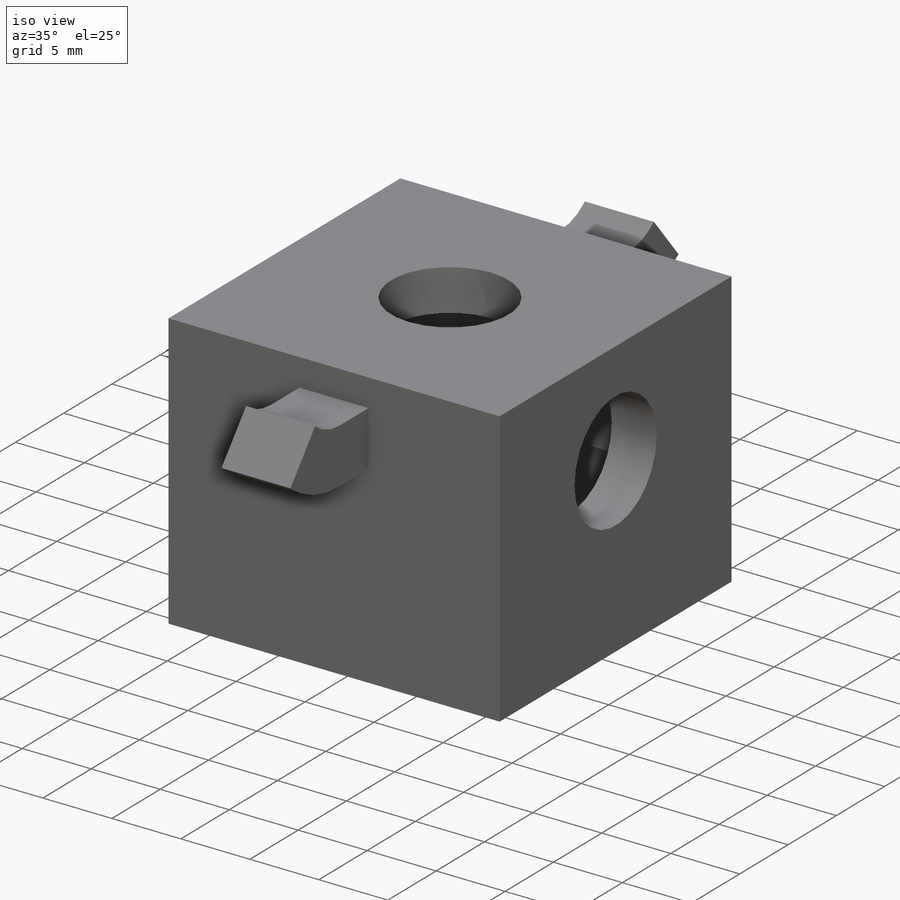
[diagram: iso view]
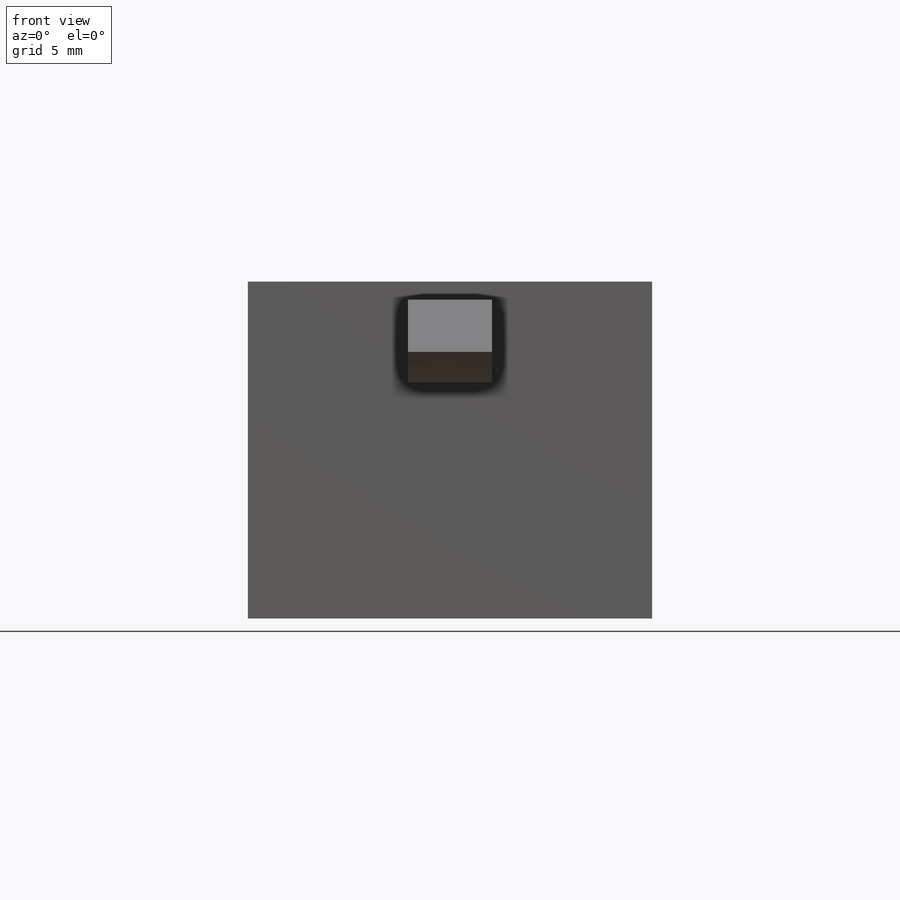
[diagram: front view]
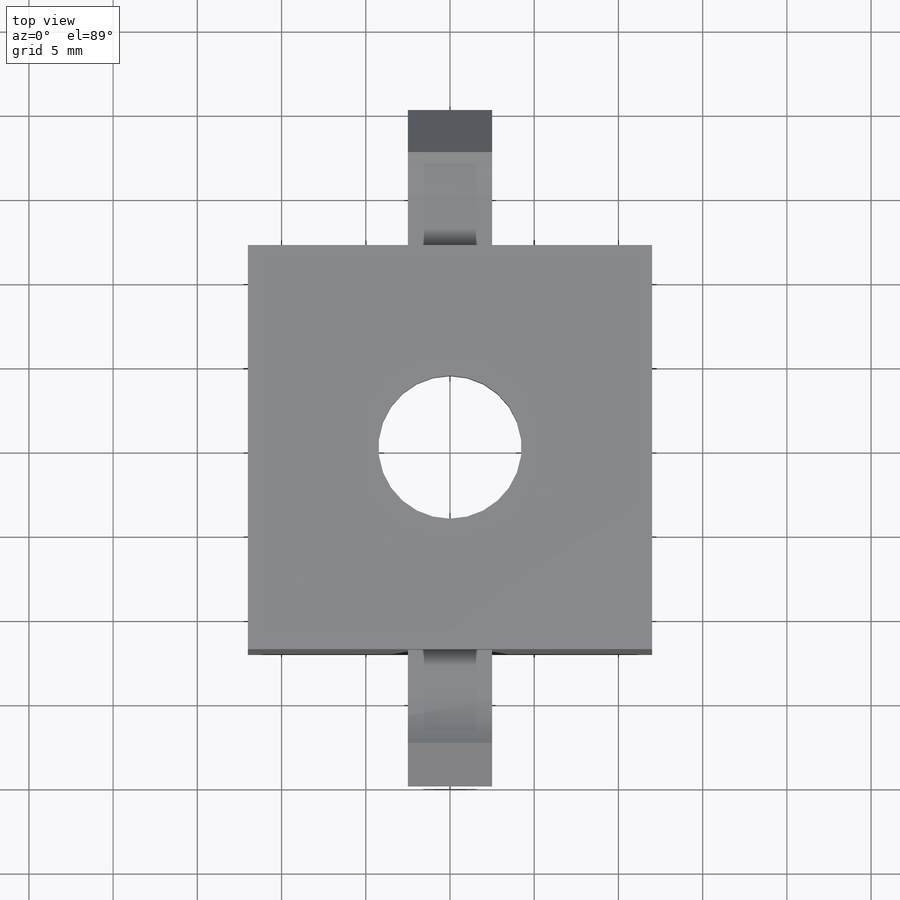
[diagram: top view]
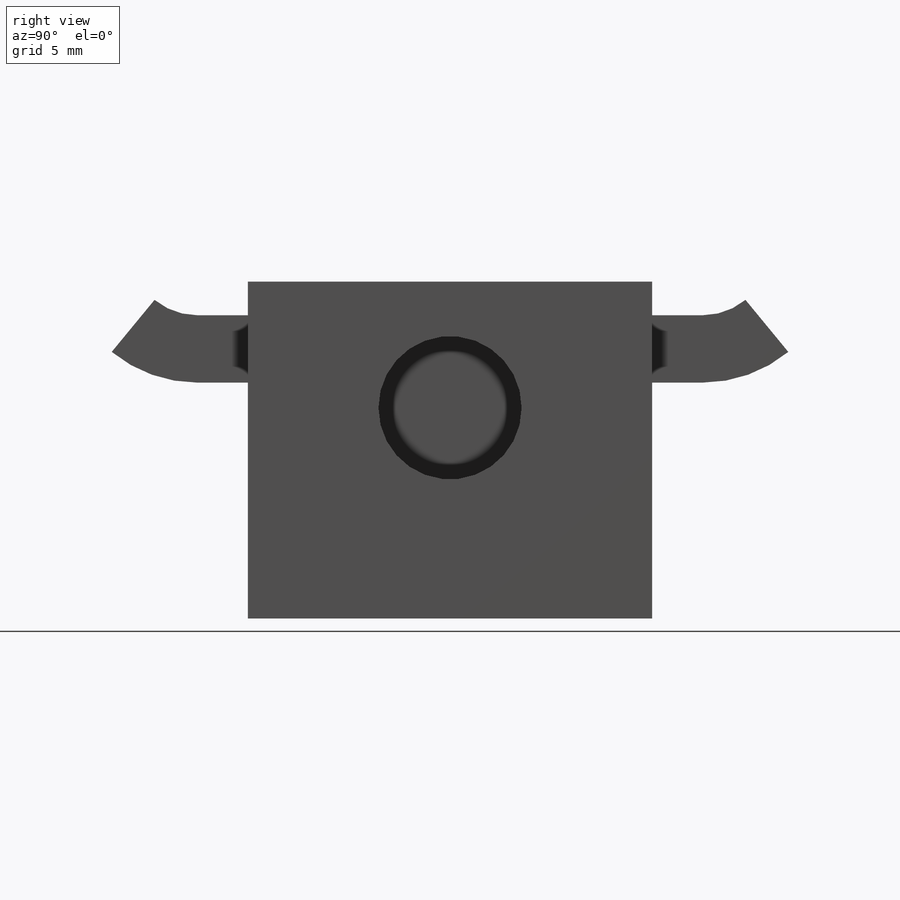
[diagram: right view]
SOLIDWORKS PART (.sldprt)
format: sldprt  version: not decoded by parser v0  size: 217,088 bytes
history: native  units: mm
features: sketch x8, cut_extrude x5, material x1, extrude x1, sweep x1, mirror x1 (+13 scaffold rows collapsed)
feature tree (30):
  scaffold x13  (default folders/planes/origin — collapsed)
  material  "Material <not specified>"
  sketch  "Sketch1"  dims[D1=24.0mm]
  extrude  "Boss-Extrude1"  Depth=20mm
  sketch  "Sketch3"  dims[D1=2.0mm]
  sketch  "Sketch5"  dims[D1=5.0mm D2=4.0mm D3=6.0mm]
  sketch  "Sketch6"  dims[c1.D2=6.0mm c1.D1=3.0mm c2.D1=135.0deg c2.D2=135.0deg]
  sweep  "Sweep1"
  mirror  "Mirror1"
  cut_extrude  "Cut-Extrude5"  Depth=6mm
  sketch  "Sketch14"
  cut_extrude  "Cut-Extrude6"  Depth=2mm
  sketch  "Sketch15"  dims[D1=1.25mm]
  cut_extrude  "Cut-Extrude7"  Depth=9mm
  sketch  "Sketch16"  dims[D1=8.5mm]
  cut_extrude  "Cut-Extrude8"  [1 undecoded]
  sketch  "Sketch17"  dims[D1=8.5mm]
  cut_extrude  "Cut-Extrude9"  [1 undecoded]
decode coverage: 11 of 16 modeling features carry decoded parameters
note: 2 parameter values undecoded
note: suppression state not decoded; provenance and decode notes live in map.json
